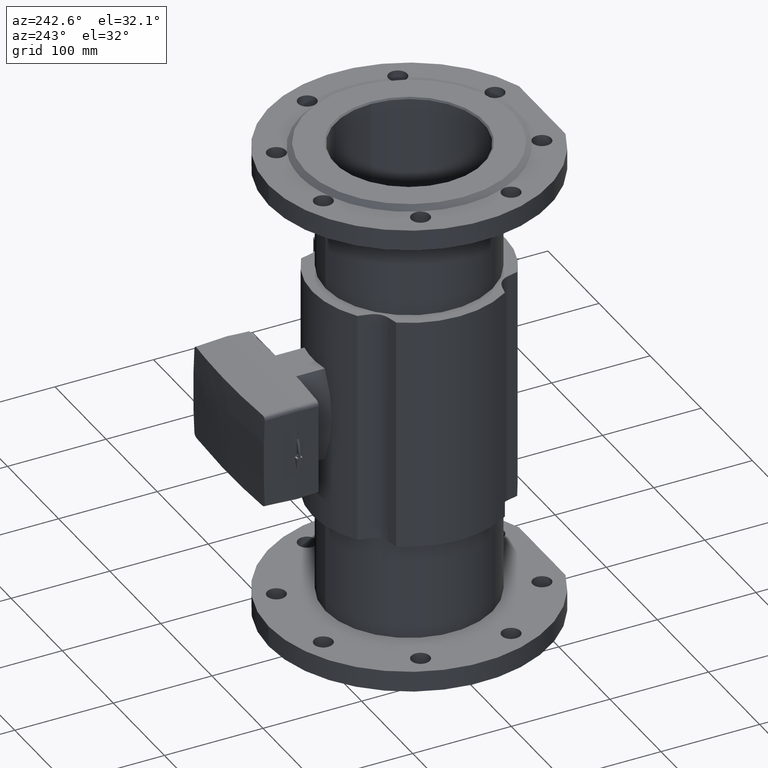
[diagram: clean part render]
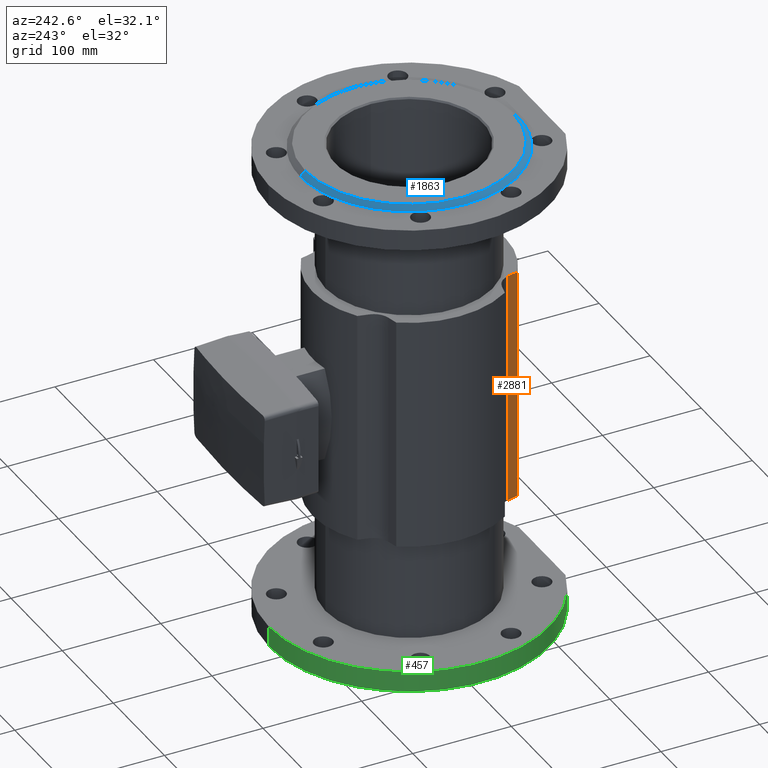
[diagram: same view with three faces highlighted in distinct colors, each labeled with its STEP entity id]
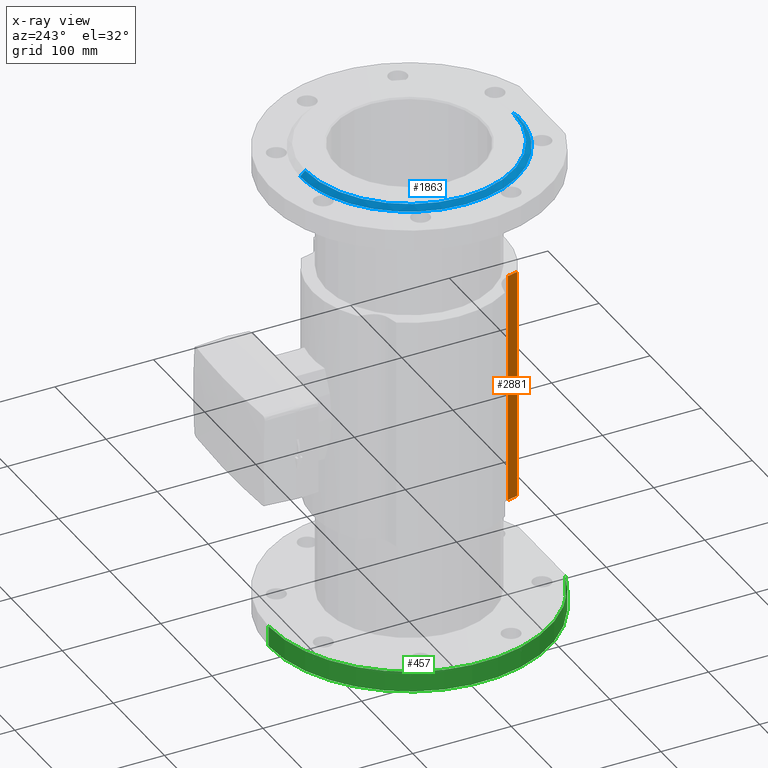
[diagram: x-ray of the same camera — body ghosted, the three highlighted faces saturated]
A machine part, auxiliary view with three faces highlighted in distinct colors.
The next image is the same camera in x-ray (body ghosted, the three faces saturated) — at least one of them is partly hidden behind the body in this view.
Their STEP definitions:

[orange] entity #2881 — the highlighted planar face has unit normal (0.9724, 0.2334, 0).
#131 = VECTOR ( 'NONE', #4999, 1000.000000000000000 ) ;
#253 = EDGE_CURVE ( 'NONE', #4540, #554, #4165, .T. ) ;
#399 = ORIENTED_EDGE ( 'NONE', *, *, #2077, .F. ) ;
#554 = VERTEX_POINT ( 'NONE', #5395 ) ;
#580 = LINE ( 'NONE', #6179, #1745 ) ;
#647 = DIRECTION ( 'NONE',  ( -0.2334453638559005062, 0.9723699203976776673, 0.0000000000000000000 ) ) ;
#812 = VERTEX_POINT ( 'NONE', #3161 ) ;
#1441 = AXIS2_PLACEMENT_3D ( 'NONE', #3817, #5135, #5639 ) ;
#1638 = CARTESIAN_POINT ( 'NONE',  ( -55.05505788000210998, -81.07367391348199703, -119.0000000000000000 ) ) ;
#1745 = VECTOR ( 'NONE', #647, 1000.000000000000227 ) ;
#2077 = EDGE_CURVE ( 'NONE', #4540, #812, #3685, .T. ) ;
#2608 = PLANE ( 'NONE',  #1441 ) ;
#2637 = ORIENTED_EDGE ( 'NONE', *, *, #4349, .T. ) ;
#2881 = ADVANCED_FACE ( 'NONE', ( #6372 ), #2608, .F. ) ;
#2965 = CARTESIAN_POINT ( 'NONE',  ( -57.66030814063395837, -70.22202560184391018, -119.0000000000000000 ) ) ;
#3120 = DIRECTION ( 'NONE',  ( -0.2334453638559005062, 0.9723699203976776673, 0.0000000000000000000 ) ) ;
#3161 = CARTESIAN_POINT ( 'NONE',  ( -57.66030814063395837, -70.22202560184391018, -119.0000000000000000 ) ) ;
#3685 = LINE ( 'NONE', #6542, #4118 ) ;
#3715 = DIRECTION ( 'NONE',  ( -0.0000000000000000000, -0.0000000000000000000, 1.000000000000000000 ) ) ;
#3817 = CARTESIAN_POINT ( 'NONE',  ( -55.05505788000210288, -81.07367391348201124, -119.0000000000000000 ) ) ;
#3857 = VERTEX_POINT ( 'NONE', #4578 ) ;
#4100 = VECTOR ( 'NONE', #3715, 1000.000000000000000 ) ;
#4118 = VECTOR ( 'NONE', #3120, 1000.000000000000227 ) ;
#4165 = LINE ( 'NONE', #1638, #4100 ) ;
#4349 = EDGE_CURVE ( 'NONE', #554, #3857, #580, .T. ) ;
#4540 = VERTEX_POINT ( 'NONE', #4657 ) ;
#4578 = CARTESIAN_POINT ( 'NONE',  ( -57.66030814063395837, -70.22202560184391018, 119.0000000000000000 ) ) ;
#4657 = CARTESIAN_POINT ( 'NONE',  ( -55.05505788000210998, -81.07367391348199703, -119.0000000000000000 ) ) ;
#4999 = DIRECTION ( 'NONE',  ( -0.0000000000000000000, -0.0000000000000000000, 1.000000000000000000 ) ) ;
#5067 = LINE ( 'NONE', #2965, #131 ) ;
#5098 = EDGE_LOOP ( 'NONE', ( #2637, #5767, #399, #5751 ) ) ;
#5135 = DIRECTION ( 'NONE',  ( 0.9723699203976777783, 0.2334453638559005062, 0.0000000000000000000 ) ) ;
#5315 = EDGE_CURVE ( 'NONE', #812, #3857, #5067, .T. ) ;
#5395 = CARTESIAN_POINT ( 'NONE',  ( -55.05505788000210998, -81.07367391348199703, 119.0000000000000000 ) ) ;
#5639 = DIRECTION ( 'NONE',  ( -0.2334453638559005062, 0.9723699203976777783, 0.0000000000000000000 ) ) ;
#5751 = ORIENTED_EDGE ( 'NONE', *, *, #253, .T. ) ;
#5767 = ORIENTED_EDGE ( 'NONE', *, *, #5315, .F. ) ;
#6179 = CARTESIAN_POINT ( 'NONE',  ( -55.05505788000210288, -81.07367391348201124, 119.0000000000000000 ) ) ;
#6372 = FACE_OUTER_BOUND ( 'NONE', #5098, .T. ) ;
#6542 = CARTESIAN_POINT ( 'NONE',  ( -55.05505788000210288, -81.07367391348201124, -119.0000000000000000 ) ) ;

[blue] entity #1863 — the highlighted conical surface has half-angle 45 deg.
#6 = CARTESIAN_POINT ( 'NONE',  ( 0.0000000000000000000, 7.167758040205710369E-15, 245.0000000000000000 ) ) ;
#46 = CARTESIAN_POINT ( 'NONE',  ( 0.0000000000000000000, 7.167758040205710369E-15, 245.0000000000000000 ) ) ;
#77 = DIRECTION ( 'NONE',  ( -0.0000000000000000000, -2.925615526614575854E-17, -1.000000000000000000 ) ) ;
#314 = DIRECTION ( 'NONE',  ( 0.0000000000000000000, 1.000000000000000000, 0.0000000000000000000 ) ) ;
#363 = VECTOR ( 'NONE', #2906, 1000.000000000000000 ) ;
#377 = CARTESIAN_POINT ( 'NONE',  ( 0.0000000000000000000, 105.4999999999999716, 250.0000000000000000 ) ) ;
#400 = DIRECTION ( 'NONE',  ( -0.0000000000000000000, -2.925615526614575854E-17, -1.000000000000000000 ) ) ;
#493 = EDGE_CURVE ( 'NONE', #6011, #516, #6557, .T. ) ;
#516 = VERTEX_POINT ( 'NONE', #4333 ) ;
#633 = DIRECTION ( 'NONE',  ( 0.0000000000000000000, 1.000000000000000000, 0.0000000000000000000 ) ) ;
#696 = DIRECTION ( 'NONE',  ( -0.0000000000000000000, -2.925615526614575854E-17, -1.000000000000000000 ) ) ;
#766 = EDGE_CURVE ( 'NONE', #2258, #5232, #5377, .T. ) ;
#784 = CIRCLE ( 'NONE', #4503, 110.4999999999999432 ) ;
#805 = AXIS2_PLACEMENT_3D ( 'NONE', #4940, #400, #3290 ) ;
#878 = LINE ( 'NONE', #1884, #363 ) ;
#900 = EDGE_LOOP ( 'NONE', ( #1418, #4320, #2487, #3945, #3257, #3583, #5637, #2666 ) ) ;
#1142 = CARTESIAN_POINT ( 'NONE',  ( -42.28651927632576957, -102.0886883425040139, 245.0000000000000000 ) ) ;
#1302 = DIRECTION ( 'NONE',  ( 0.0000000000000000000, 1.000000000000000000, 0.0000000000000000000 ) ) ;
#1303 = EDGE_CURVE ( 'NONE', #5590, #5232, #2852, .T. ) ;
#1418 = ORIENTED_EDGE ( 'NONE', *, *, #4716, .F. ) ;
#1616 = CARTESIAN_POINT ( 'NONE',  ( 1.322618543079140862E-14, -105.4999999999999432, 250.0000000000000000 ) ) ;
#1750 = EDGE_CURVE ( 'NONE', #4056, #5590, #2090, .T. ) ;
#1806 = CARTESIAN_POINT ( 'NONE',  ( 0.0000000000000000000, 7.167758040205710369E-15, 245.0000000000000000 ) ) ;
#1863 = ADVANCED_FACE ( 'NONE', ( #4895 ), #4542, .T. ) ;
#1872 = DIRECTION ( 'NONE',  ( -0.0000000000000000000, -2.925615526614575854E-17, -1.000000000000000000 ) ) ;
#1884 = CARTESIAN_POINT ( 'NONE',  ( 1.353234713057824649E-14, -110.4999999999999289, 245.0000000000000000 ) ) ;
#1993 = CARTESIAN_POINT ( 'NONE',  ( 0.0000000000000000000, 110.4999999999999574, 245.0000000000000000 ) ) ;
#2011 = VERTEX_POINT ( 'NONE', #1142 ) ;
#2090 = CIRCLE ( 'NONE', #2295, 105.4999999999999574 ) ;
#2147 = AXIS2_PLACEMENT_3D ( 'NONE', #6, #5592, #3487 ) ;
#2258 = VERTEX_POINT ( 'NONE', #6528 ) ;
#2295 = AXIS2_PLACEMENT_3D ( 'NONE', #5007, #2476, #4016 ) ;
#2323 = DIRECTION ( 'NONE',  ( -0.0000000000000000000, -2.925615526614575854E-17, -1.000000000000000000 ) ) ;
#2476 = DIRECTION ( 'NONE',  ( -0.0000000000000000000, -2.925615526614575854E-17, -1.000000000000000000 ) ) ;
#2487 = ORIENTED_EDGE ( 'NONE', *, *, #1303, .T. ) ;
#2666 = ORIENTED_EDGE ( 'NONE', *, *, #3651, .F. ) ;
#2719 = CARTESIAN_POINT ( 'NONE',  ( 0.0000000000000000000, 7.167758040205710369E-15, 245.0000000000000000 ) ) ;
#2852 = LINE ( 'NONE', #1993, #6357 ) ;
#2906 = DIRECTION ( 'NONE',  ( 8.659560562354921765E-17, -0.7071067811865465735, -0.7071067811865484609 ) ) ;
#3140 = AXIS2_PLACEMENT_3D ( 'NONE', #46, #77, #4668 ) ;
#3150 = AXIS2_PLACEMENT_3D ( 'NONE', #1806, #1872, #314 ) ;
#3257 = ORIENTED_EDGE ( 'NONE', *, *, #6326, .F. ) ;
#3290 = DIRECTION ( 'NONE',  ( 0.0000000000000000000, 1.000000000000000000, 0.0000000000000000000 ) ) ;
#3487 = DIRECTION ( 'NONE',  ( 0.0000000000000000000, 1.000000000000000000, 0.0000000000000000000 ) ) ;
#3536 = CARTESIAN_POINT ( 'NONE',  ( -102.0886883424931995, -42.28651927635189622, 245.0000000000000000 ) ) ;
#3583 = ORIENTED_EDGE ( 'NONE', *, *, #493, .F. ) ;
#3651 = EDGE_CURVE ( 'NONE', #4439, #2011, #3761, .T. ) ;
#3740 = CIRCLE ( 'NONE', #2147, 110.4999999999999432 ) ;
#3761 = CIRCLE ( 'NONE', #5151, 110.4999999999999432 ) ;
#3945 = ORIENTED_EDGE ( 'NONE', *, *, #766, .F. ) ;
#4016 = DIRECTION ( 'NONE',  ( 0.0000000000000000000, 1.000000000000000000, 0.0000000000000000000 ) ) ;
#4041 = CARTESIAN_POINT ( 'NONE',  ( 0.0000000000000000000, 110.4999999999999574, 245.0000000000000000 ) ) ;
#4056 = VERTEX_POINT ( 'NONE', #1616 ) ;
#4320 = ORIENTED_EDGE ( 'NONE', *, *, #1750, .T. ) ;
#4333 = CARTESIAN_POINT ( 'NONE',  ( -102.0886883424981164, 42.28651927634004437, 245.0000000000000000 ) ) ;
#4432 = EDGE_CURVE ( 'NONE', #2011, #6011, #784, .T. ) ;
#4439 = VERTEX_POINT ( 'NONE', #4886 ) ;
#4503 = AXIS2_PLACEMENT_3D ( 'NONE', #6374, #2323, #1302 ) ;
#4542 = CONICAL_SURFACE ( 'NONE', #3150, 110.4999999999999432, 0.7853981633974469467 ) ;
#4668 = DIRECTION ( 'NONE',  ( 0.0000000000000000000, 1.000000000000000000, 0.0000000000000000000 ) ) ;
#4716 = EDGE_CURVE ( 'NONE', #4056, #4439, #878, .T. ) ;
#4886 = CARTESIAN_POINT ( 'NONE',  ( 1.353234713057824649E-14, -110.4999999999999289, 245.0000000000000000 ) ) ;
#4895 = FACE_OUTER_BOUND ( 'NONE', #900, .T. ) ;
#4940 = CARTESIAN_POINT ( 'NONE',  ( 0.0000000000000000000, 7.167758040205710369E-15, 245.0000000000000000 ) ) ;
#5007 = CARTESIAN_POINT ( 'NONE',  ( 0.0000000000000000000, 7.314038816536439377E-15, 250.0000000000000000 ) ) ;
#5151 = AXIS2_PLACEMENT_3D ( 'NONE', #2719, #696, #633 ) ;
#5232 = VERTEX_POINT ( 'NONE', #4041 ) ;
#5377 = CIRCLE ( 'NONE', #3140, 110.4999999999999432 ) ;
#5590 = VERTEX_POINT ( 'NONE', #377 ) ;
#5592 = DIRECTION ( 'NONE',  ( -0.0000000000000000000, -2.925615526614575854E-17, -1.000000000000000000 ) ) ;
#5621 = DIRECTION ( 'NONE',  ( 0.0000000000000000000, 0.7071067811865465735, -0.7071067811865484609 ) ) ;
#5637 = ORIENTED_EDGE ( 'NONE', *, *, #4432, .F. ) ;
#6011 = VERTEX_POINT ( 'NONE', #3536 ) ;
#6326 = EDGE_CURVE ( 'NONE', #516, #2258, #3740, .T. ) ;
#6357 = VECTOR ( 'NONE', #5621, 1000.000000000000000 ) ;
#6374 = CARTESIAN_POINT ( 'NONE',  ( 0.0000000000000000000, 7.167758040205710369E-15, 245.0000000000000000 ) ) ;
#6528 = CARTESIAN_POINT ( 'NONE',  ( -42.28651927634177810, 102.0886883424974201, 245.0000000000000000 ) ) ;
#6557 = CIRCLE ( 'NONE', #805, 110.4999999999999432 ) ;

[green] entity #457 — the highlighted cylindrical surface (partial cylindrical patch) has radius 142.5 mm, axis along (-0, -0, -1).
#126 = CARTESIAN_POINT ( 'NONE',  ( -45.62071897723633640, -135.0000000000000284, -245.0000000000000000 ) ) ;
#205 = EDGE_CURVE ( 'NONE', #568, #4950, #3459, .T. ) ;
#457 = ADVANCED_FACE ( 'NONE', ( #6521 ), #5443, .T. ) ;
#568 = VERTEX_POINT ( 'NONE', #6196 ) ;
#680 = ORIENTED_EDGE ( 'NONE', *, *, #4110, .T. ) ;
#763 = DIRECTION ( 'NONE',  ( 0.0000000000000000000, 1.000000000000000000, -2.925615526614575854E-17 ) ) ;
#907 = AXIS2_PLACEMENT_3D ( 'NONE', #1766, #3281, #763 ) ;
#1154 = EDGE_LOOP ( 'NONE', ( #680, #5874, #5496, #2121 ) ) ;
#1484 = DIRECTION ( 'NONE',  ( -0.0000000000000000000, -0.0000000000000000000, 1.000000000000000000 ) ) ;
#1577 = CARTESIAN_POINT ( 'NONE',  ( 0.0000000000000000000, -6.553378779616650900E-15, -224.0000000000000284 ) ) ;
#1603 = CARTESIAN_POINT ( 'NONE',  ( -45.62071897723643588, -135.0000000000000000, -250.0000000000000000 ) ) ;
#1618 = CIRCLE ( 'NONE', #5009, 142.4999999999999432 ) ;
#1766 = CARTESIAN_POINT ( 'NONE',  ( 0.0000000000000000000, 0.0000000000000000000, 0.0000000000000000000 ) ) ;
#1904 = DIRECTION ( 'NONE',  ( -0.0000000000000000000, -2.925615526614575854E-17, -1.000000000000000000 ) ) ;
#2064 = EDGE_CURVE ( 'NONE', #2539, #6419, #6174, .T. ) ;
#2121 = ORIENTED_EDGE ( 'NONE', *, *, #2064, .T. ) ;
#2177 = AXIS2_PLACEMENT_3D ( 'NONE', #1577, #5601, #4498 ) ;
#2539 = VERTEX_POINT ( 'NONE', #126 ) ;
#2711 = CIRCLE ( 'NONE', #2177, 142.4999999999999716 ) ;
#2990 = DIRECTION ( 'NONE',  ( -0.0000000000000000000, -2.925615526614575854E-17, -1.000000000000000000 ) ) ;
#3185 = CARTESIAN_POINT ( 'NONE',  ( -45.62071897723643588, -135.0000000000000000, -224.0000000000000284 ) ) ;
#3281 = DIRECTION ( 'NONE',  ( -0.0000000000000000000, -2.925615526614575854E-17, -1.000000000000000000 ) ) ;
#3428 = DIRECTION ( 'NONE',  ( 0.0000000000000000000, 1.000000000000000000, 0.0000000000000000000 ) ) ;
#3459 = LINE ( 'NONE', #4989, #6023 ) ;
#3828 = CARTESIAN_POINT ( 'NONE',  ( 0.0000000000000000000, -7.167758040205710369E-15, -245.0000000000000000 ) ) ;
#4110 = EDGE_CURVE ( 'NONE', #6419, #568, #2711, .T. ) ;
#4498 = DIRECTION ( 'NONE',  ( 0.0000000000000000000, 1.000000000000000000, 0.0000000000000000000 ) ) ;
#4679 = CARTESIAN_POINT ( 'NONE',  ( 0.0000000000000000000, 142.4999999999999432, -245.0000000000000000 ) ) ;
#4950 = VERTEX_POINT ( 'NONE', #4679 ) ;
#4989 = CARTESIAN_POINT ( 'NONE',  ( 0.0000000000000000000, 142.4999999999999716, -4.169002125425769640E-15 ) ) ;
#5009 = AXIS2_PLACEMENT_3D ( 'NONE', #3828, #1904, #3428 ) ;
#5154 = EDGE_CURVE ( 'NONE', #2539, #4950, #1618, .T. ) ;
#5443 = CYLINDRICAL_SURFACE ( 'NONE', #907, 142.4999999999999716 ) ;
#5496 = ORIENTED_EDGE ( 'NONE', *, *, #5154, .F. ) ;
#5601 = DIRECTION ( 'NONE',  ( -0.0000000000000000000, -2.925615526614575854E-17, -1.000000000000000000 ) ) ;
#5874 = ORIENTED_EDGE ( 'NONE', *, *, #205, .T. ) ;
#6023 = VECTOR ( 'NONE', #2990, 1000.000000000000000 ) ;
#6174 = LINE ( 'NONE', #1603, #6267 ) ;
#6196 = CARTESIAN_POINT ( 'NONE',  ( 0.0000000000000000000, 142.4999999999999716, -224.0000000000000284 ) ) ;
#6267 = VECTOR ( 'NONE', #1484, 1000.000000000000000 ) ;
#6419 = VERTEX_POINT ( 'NONE', #3185 ) ;
#6521 = FACE_OUTER_BOUND ( 'NONE', #1154, .T. ) ;